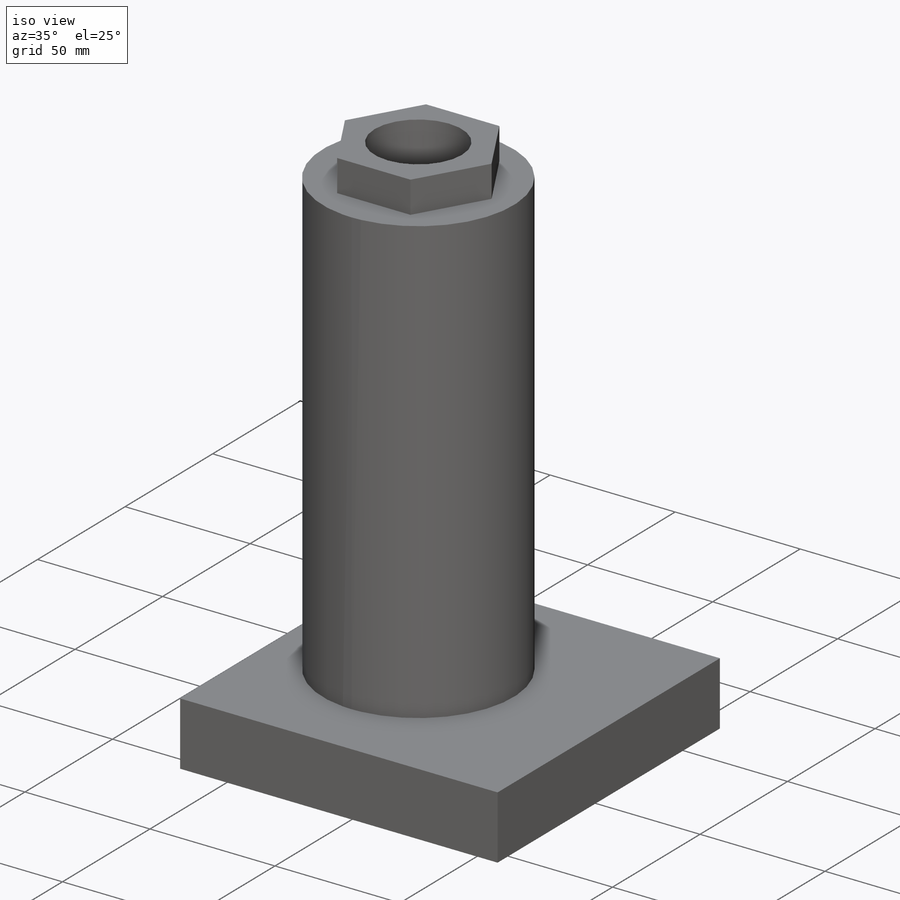
[diagram: iso view]
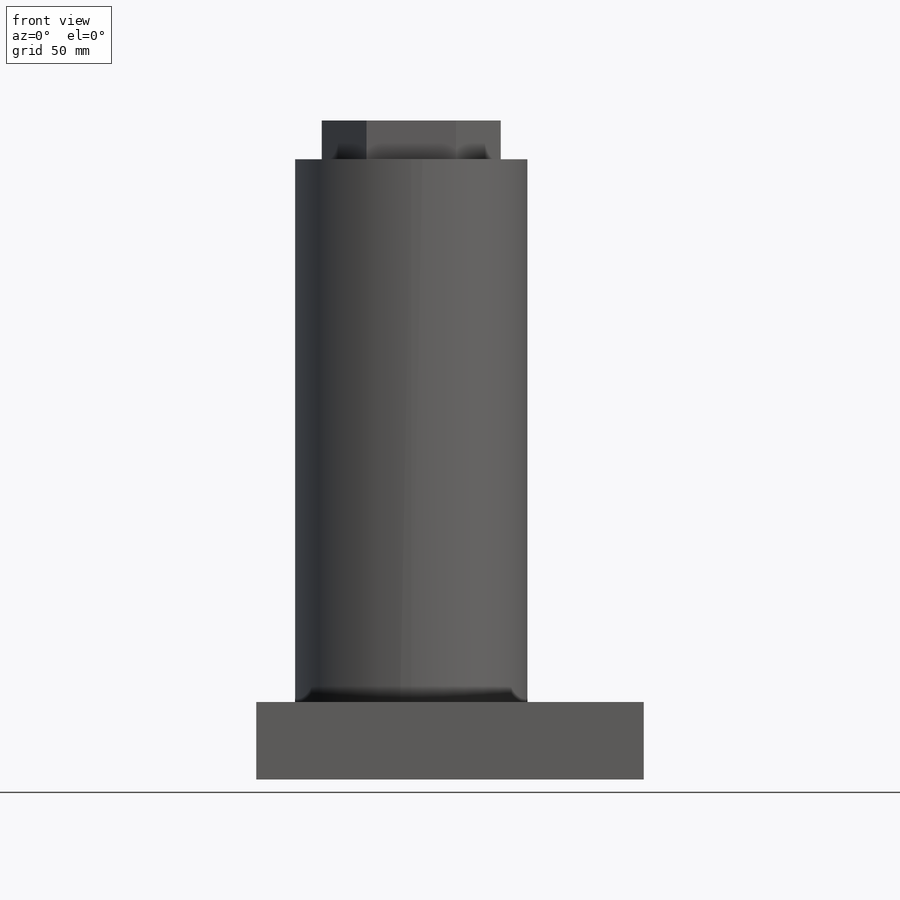
[diagram: front view]
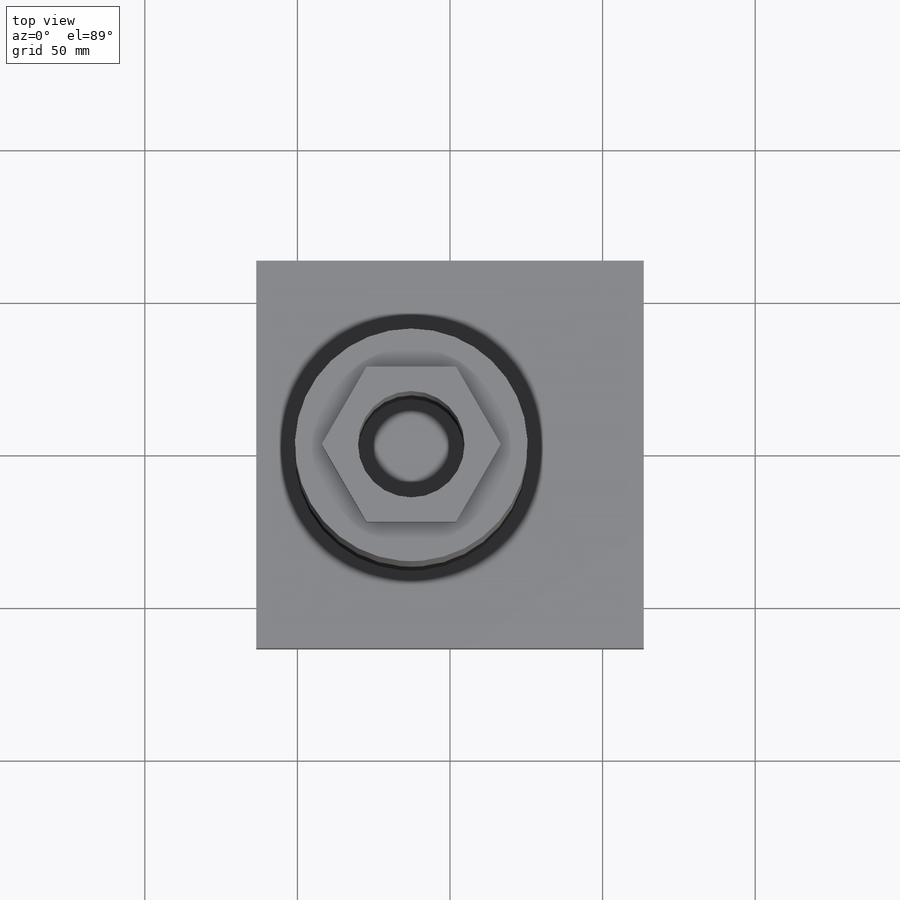
[diagram: top view]
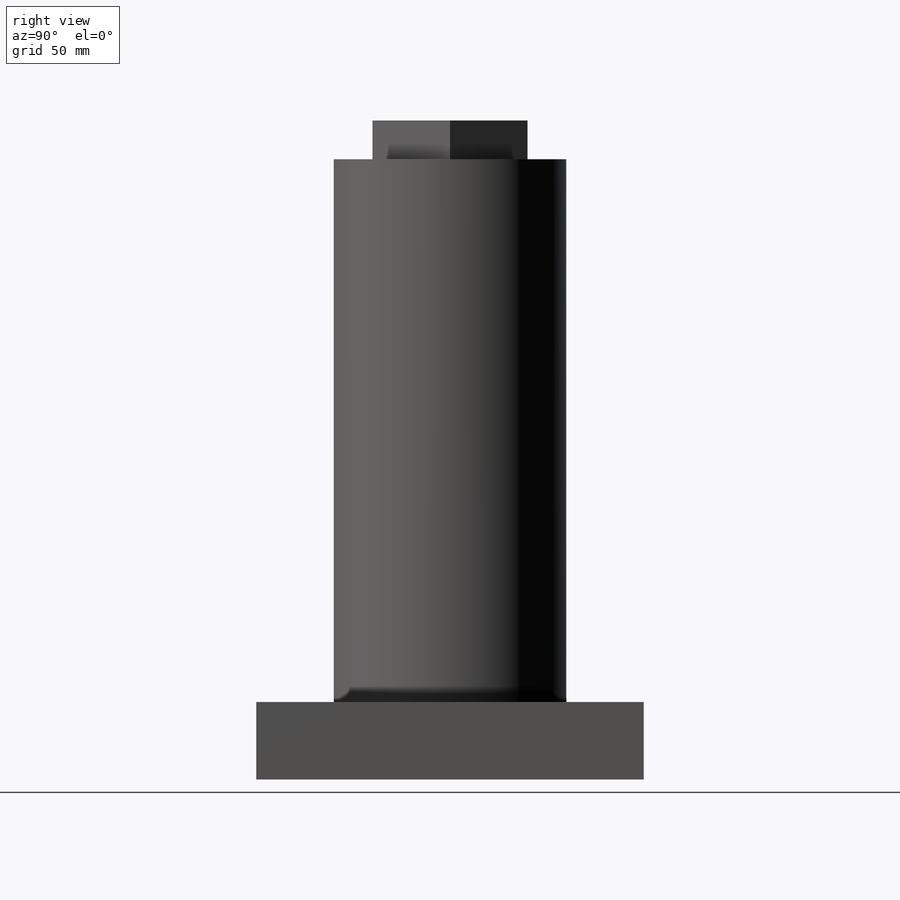
[diagram: right view]
SOLIDWORKS PART (.sldprt)
format: sldprt  version: not decoded by parser v0  size: 167,936 bytes
history: native  units: mm
features: sketch x5, extrude x3, material x1, cut_extrude x1 (+12 scaffold rows collapsed)
feature tree (22):
  scaffold x12  (default folders/planes/origin — collapsed)
  material  "Material <not specified>"
  sketch  "Sketch1"  dims[D1=127.0mm D2=127.0mm]
  extrude  "Boss-Extrude1"  Depth=25.4mm
  sketch  "Sketch2"  dims[D1=76.2mm D2=50.8mm]
  extrude  "Boss-Extrude2"  Depth=177.8mm
  sketch  "Sketch3"  dims[D1=50.8mm]
  extrude  "Boss-Extrude3"  Depth=12.7mm
  sketch  "Sketch4"  dims[D1=34.925mm]
  cut_extrude  "Cut-Extrude1"  Depth=152.4mm
  sketch  "Sketch5"
decode coverage: 8 of 9 modeling features carry decoded parameters
note: suppression state not decoded; provenance and decode notes live in map.json
